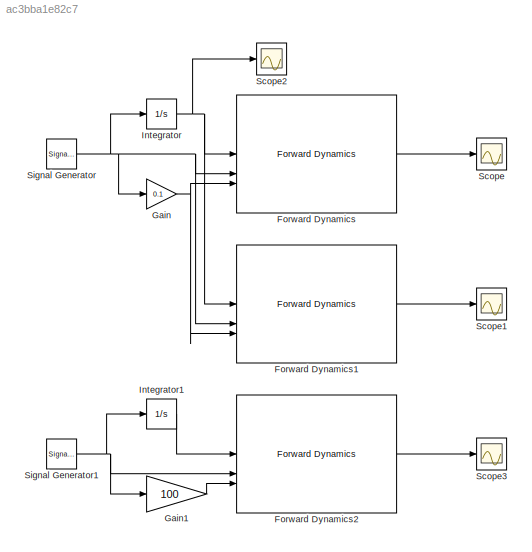
MODEL slx_ac3bba1e82c7
KIND model
CONFIG AbsTol = auto
CONFIG EnableMultiTasking = off
CONFIG FixedStep = 1e-3
CONFIG MaxStep = auto
CONFIG MinStep = auto
CONFIG RelTol = 1e-3
CONFIG SampleTimeConstraint = Unconstrained
CONFIG SolverName = ode1
CONFIG StartTime = 0.0
CONFIG StopTime = 10.0
BLOCK [Reference] Forward Dynamics  REF=sdu_controllers/Forward Dynamics
  SourceBlock = sdu_controllers/Forward Dynamics
  SourceType = forward_dynamics
BLOCK [Reference] Forward Dynamics1  REF=sdu_controllers/Forward Dynamics
  SourceBlock = sdu_controllers/Forward Dynamics
  SourceType = forward_dynamics
BLOCK [Reference] Forward Dynamics2  REF=sdu_controllers/Forward Dynamics
  SourceBlock = sdu_controllers/Forward Dynamics
  SourceType = forward_dynamics
BLOCK [Gain] Gain
  Gain = 0.1
BLOCK [Gain] Gain1
  Gain = 100
BLOCK [Integrator] Integrator
BLOCK [Integrator] Integrator1
BLOCK [Scope] Scope
  Floating = off
  NumInputPorts = 1
  ScopeSpecificationString = Simulink.scopes.TimeScopeBlockCfg('CurrentConfiguration', extmgr.ConfigurationSet(extmgr.Configuration('Core','General UI',true),extmgr.Configuration('Core','Source UI',true),extmgr.Configuration('Sources','WiredSimulink',true),extmgr.Configuration('Visuals','Time Domain',true,'SerializedDisplays',{struct('MinYLimReal','-846.33479','MaxYLimReal','873.12587','YLabelReal','','MinYLimMag',' 0.00000',...<+1575ch>
BLOCK [Scope] Scope1
  Floating = off
  NumInputPorts = 1
  ScopeSpecificationString = Simulink.scopes.TimeScopeBlockCfg('CurrentConfiguration', extmgr.ConfigurationSet(extmgr.Configuration('Core','General UI',true),extmgr.Configuration('Core','Source UI',true),extmgr.Configuration('Sources','WiredSimulink',true,'DataLoggingVariableName','ScopeData1'),extmgr.Configuration('Visuals','Time Domain',true,'SerializedDisplays',{struct('MinYLimReal','-1223.78472','MaxYLimReal','1268.43736'...<+1793ch>
BLOCK [Scope] Scope2
  Floating = off
  NumInputPorts = 1
  ScopeSpecificationString = Simulink.scopes.TimeScopeBlockCfg('CurrentConfiguration', extmgr.ConfigurationSet(extmgr.Configuration('Core','General UI',true),extmgr.Configuration('Core','Source UI',true),extmgr.Configuration('Sources','WiredSimulink',true,'DataLoggingVariableName','ScopeData1'),extmgr.Configuration('Visuals','Time Domain',true,'SerializedDisplays',{struct('MinYLimReal','-0.25','MaxYLimReal','2.25','YLabelReal...<+1517ch>
BLOCK [Scope] Scope3
  Floating = off
  NumInputPorts = 1
  ScopeSpecificationString = Simulink.scopes.TimeScopeBlockCfg('CurrentConfiguration', extmgr.ConfigurationSet(extmgr.Configuration('Core','General UI',true),extmgr.Configuration('Core','Source UI',true),extmgr.Configuration('Sources','WiredSimulink',true,'DataLoggingVariableName','ScopeData2'),extmgr.Configuration('Visuals','Time Domain',true,'SerializedDisplays',{struct('MinYLimReal','-11.88444','MaxYLimReal','4.21122','YLa...<+1797ch>
BLOCK [SignalGenerator] Signal Generator
  Amplitude = 1 * ones(6,1)
  Frequency = 1 * ones(6,1)
  Units = rad/sec
BLOCK [SignalGenerator] Signal Generator1
  Amplitude = 1 * ones(7,1)
  Frequency = 1 * ones(7,1)
  Units = rad/sec
LINE Forward Dynamics1:1 -> Scope1:1
LINE Forward Dynamics2:1 -> Scope3:1
LINE Forward Dynamics:1 -> Scope:1
LINE Gain1:1 -> Forward Dynamics2:3
NET Gain:1 -> Forward Dynamics1:3, Forward Dynamics:3
LINE Integrator1:1 -> Forward Dynamics2:1
NET Integrator:1 -> Forward Dynamics1:1, Forward Dynamics:1, Scope2:1
NET Signal Generator1:1 -> Forward Dynamics2:2, Gain1:1, Integrator1:1
NET Signal Generator:1 -> Forward Dynamics1:2, Forward Dynamics:2, Gain:1, Integrator:1
note: NET lines group one-source signal fan-out (src -> all destinations, sorted); 1:1 wires keep LINE
